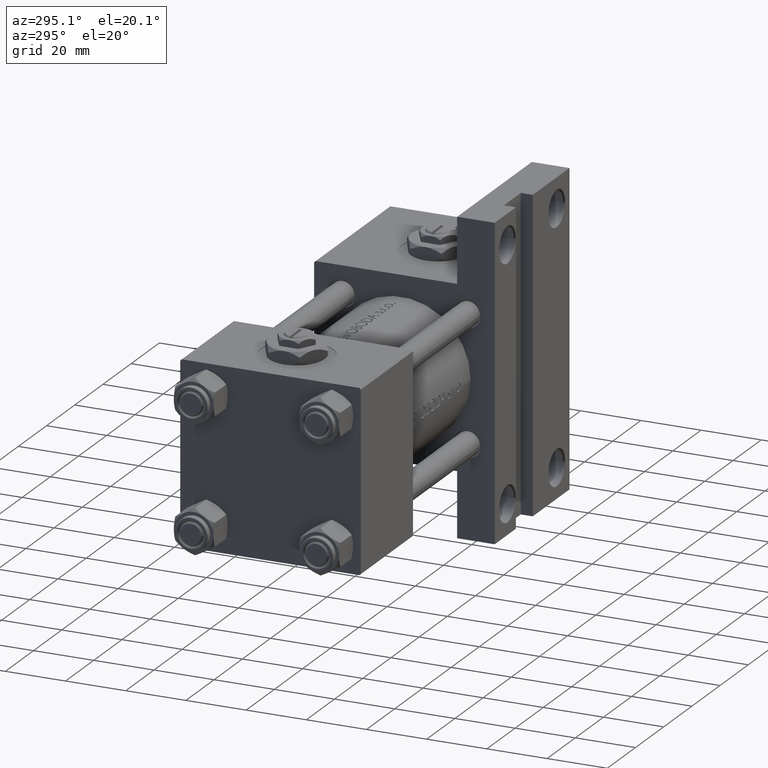
[diagram: clean part render]
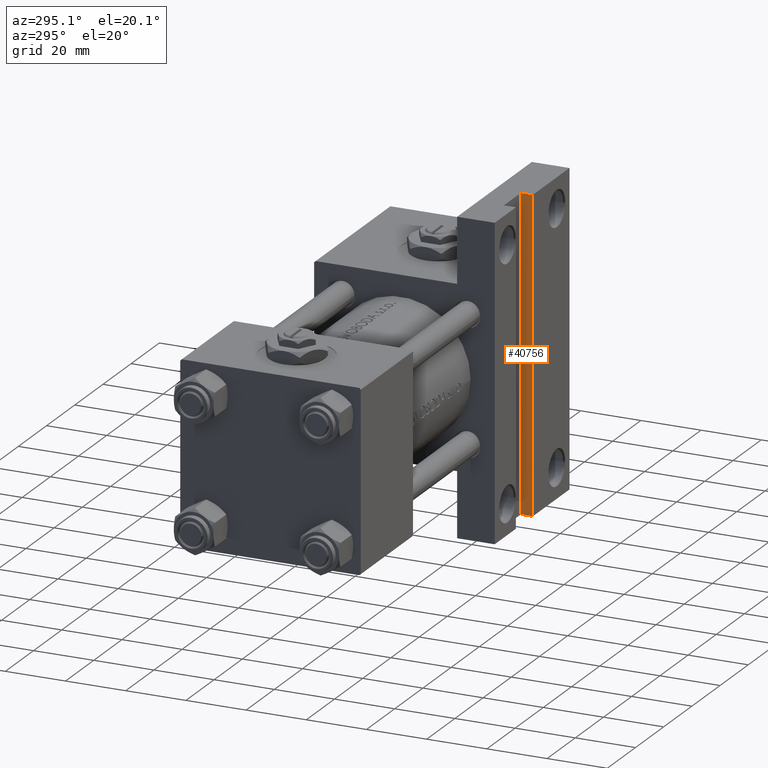
[diagram: same view with one face highlighted and labeled with its STEP entity id]
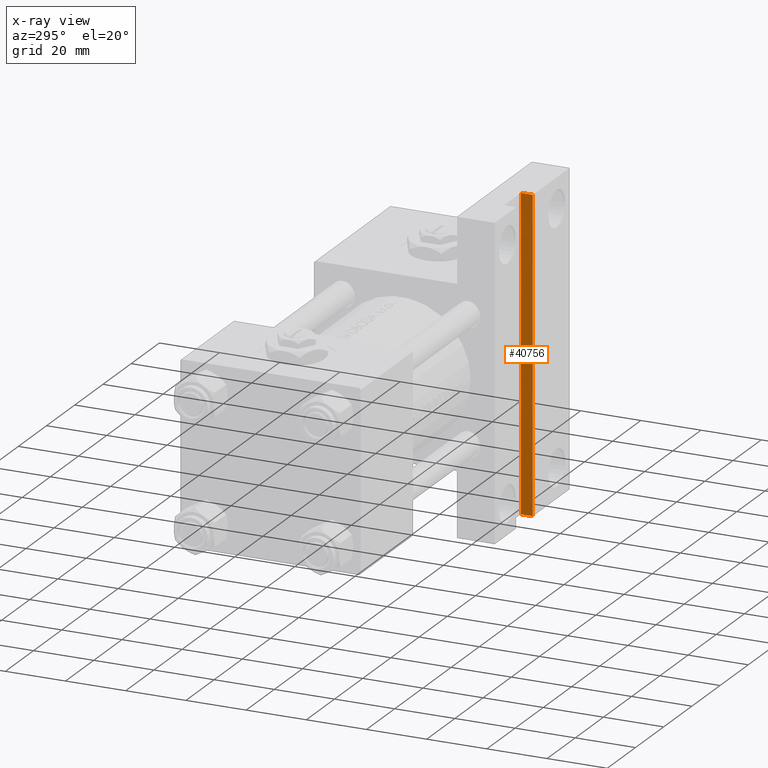
[diagram: x-ray of the same camera — body ghosted, the highlighted face saturated]
A machine part, auxiliary view. The second image highlights one B-rep face of the part: STEP entity #40756.
The next image is the same camera in x-ray: the body ghosted, the highlighted face saturated — about 0% of this face is hidden behind the body in this view.
In plain terms, the highlighted planar face has unit normal (1, 0, 0).
Its self-contained STEP definition (entity closure, byte-faithful):
#1852 = VERTEX_POINT ( 'NONE', #19786 ) ;
#2805 = EDGE_CURVE ( 'NONE', #41675, #41072, #32332, .T. ) ;
#6175 = EDGE_CURVE ( 'NONE', #41072, #38108, #19807, .T. ) ;
#6523 = DIRECTION ( 'NONE',  ( 0.000000000000000000, 0.000000000000000000, -1.000000000000000000 ) ) ;
#7227 = CARTESIAN_POINT ( 'NONE',  ( 121.9999999999999858, -51.49999999999999289, -25.99999999999999645 ) ) ;
#8456 = CARTESIAN_POINT ( 'NONE',  ( 121.9999999999999858, -51.49999999999999289, -29.99999999999999645 ) ) ;
#9736 = CARTESIAN_POINT ( 'NONE',  ( 121.9999999999999858, -51.49999999999999289, -25.99999999999999645 ) ) ;
#12831 = AXIS2_PLACEMENT_3D ( 'NONE', #14228, #45534, #6523 ) ;
#12832 = DIRECTION ( 'NONE',  ( -0.000000000000000000, -1.000000000000000000, -0.000000000000000000 ) ) ;
#14228 = CARTESIAN_POINT ( 'NONE',  ( 121.9999999999999858, -51.49999999999999289, -25.99999999999999645 ) ) ;
#15853 = DIRECTION ( 'NONE',  ( -0.000000000000000000, -0.000000000000000000, -1.000000000000000000 ) ) ;
#15992 = EDGE_CURVE ( 'NONE', #1852, #38108, #20538, .T. ) ;
#16133 = ORIENTED_EDGE ( 'NONE', *, *, #46580, .T. ) ;
#18775 = VECTOR ( 'NONE', #15853, 1000.000000000000000 ) ;
#19786 = CARTESIAN_POINT ( 'NONE',  ( 121.9999999999999858, 51.50000000000000711, -29.99999999999999645 ) ) ;
#19807 = LINE ( 'NONE', #7227, #35843 ) ;
#20538 = LINE ( 'NONE', #20794, #31715 ) ;
#20794 = CARTESIAN_POINT ( 'NONE',  ( 121.9999999999999858, -51.49999999999999289, -29.99999999999999645 ) ) ;
#22377 = CARTESIAN_POINT ( 'NONE',  ( 121.9999999999999858, 51.50000000000000711, -25.99999999999999645 ) ) ;
#22628 = CARTESIAN_POINT ( 'NONE',  ( 121.9999999999999858, -51.50000000000000711, -25.99999999999999645 ) ) ;
#23538 = CARTESIAN_POINT ( 'NONE',  ( 121.9999999999999858, 51.50000000000000711, -25.99999999999999645 ) ) ;
#23794 = LINE ( 'NONE', #23538, #18775 ) ;
#26286 = PLANE ( 'NONE',  #12831 ) ;
#26403 = EDGE_LOOP ( 'NONE', ( #48954, #28476, #37864, #16133 ) ) ;
#28476 = ORIENTED_EDGE ( 'NONE', *, *, #6175, .F. ) ;
#31715 = VECTOR ( 'NONE', #36186, 1000.000000000000000 ) ;
#32332 = LINE ( 'NONE', #9736, #43931 ) ;
#35843 = VECTOR ( 'NONE', #46492, 1000.000000000000000 ) ;
#36186 = DIRECTION ( 'NONE',  ( -0.000000000000000000, -1.000000000000000000, -0.000000000000000000 ) ) ;
#37864 = ORIENTED_EDGE ( 'NONE', *, *, #2805, .F. ) ;
#38108 = VERTEX_POINT ( 'NONE', #8456 ) ;
#40756 = ADVANCED_FACE ( 'NONE', ( #45795 ), #26286, .F. ) ;
#41072 = VERTEX_POINT ( 'NONE', #22628 ) ;
#41675 = VERTEX_POINT ( 'NONE', #22377 ) ;
#43931 = VECTOR ( 'NONE', #12832, 1000.000000000000000 ) ;
#45534 = DIRECTION ( 'NONE',  ( 1.000000000000000000, 0.000000000000000000, 0.000000000000000000 ) ) ;
#45795 = FACE_OUTER_BOUND ( 'NONE', #26403, .T. ) ;
#46492 = DIRECTION ( 'NONE',  ( -0.000000000000000000, -0.000000000000000000, -1.000000000000000000 ) ) ;
#46580 = EDGE_CURVE ( 'NONE', #41675, #1852, #23794, .T. ) ;
#48954 = ORIENTED_EDGE ( 'NONE', *, *, #15992, .T. ) ;